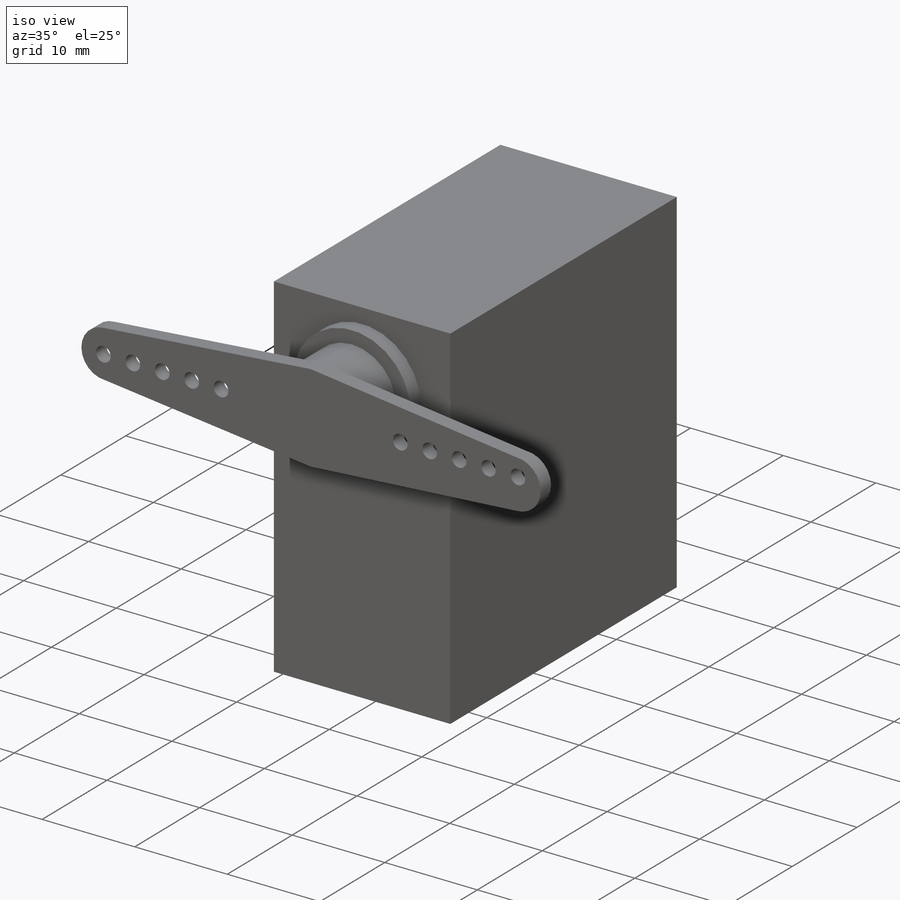
[diagram: iso view]
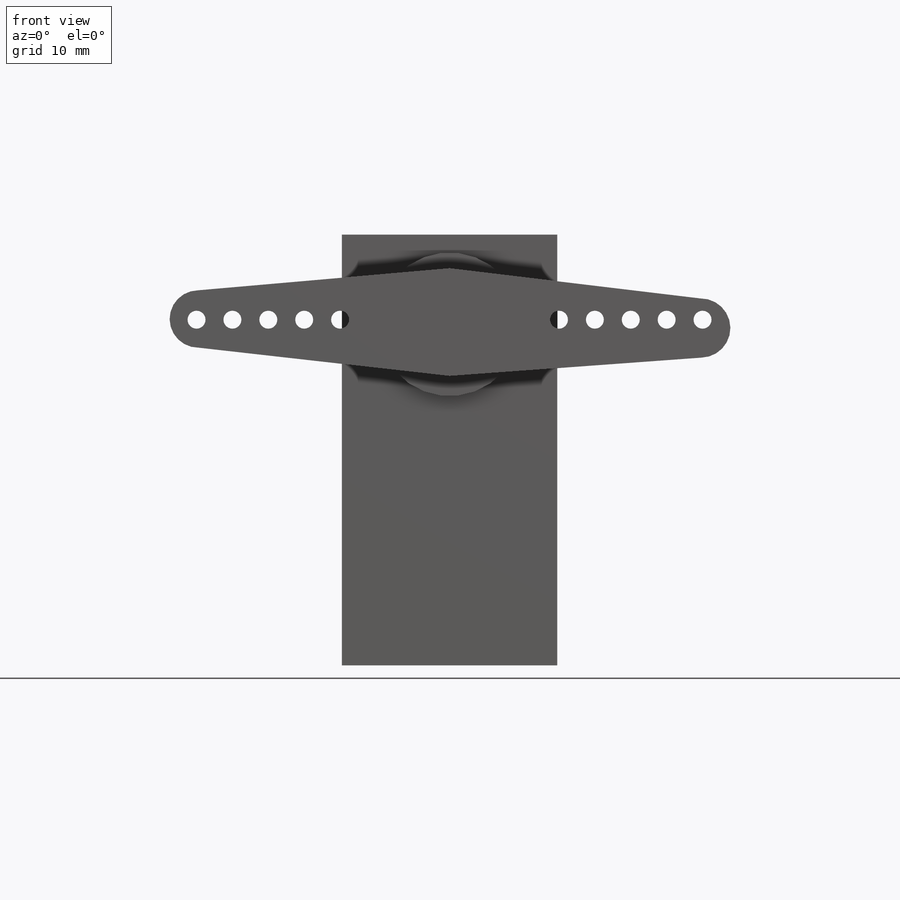
[diagram: front view]
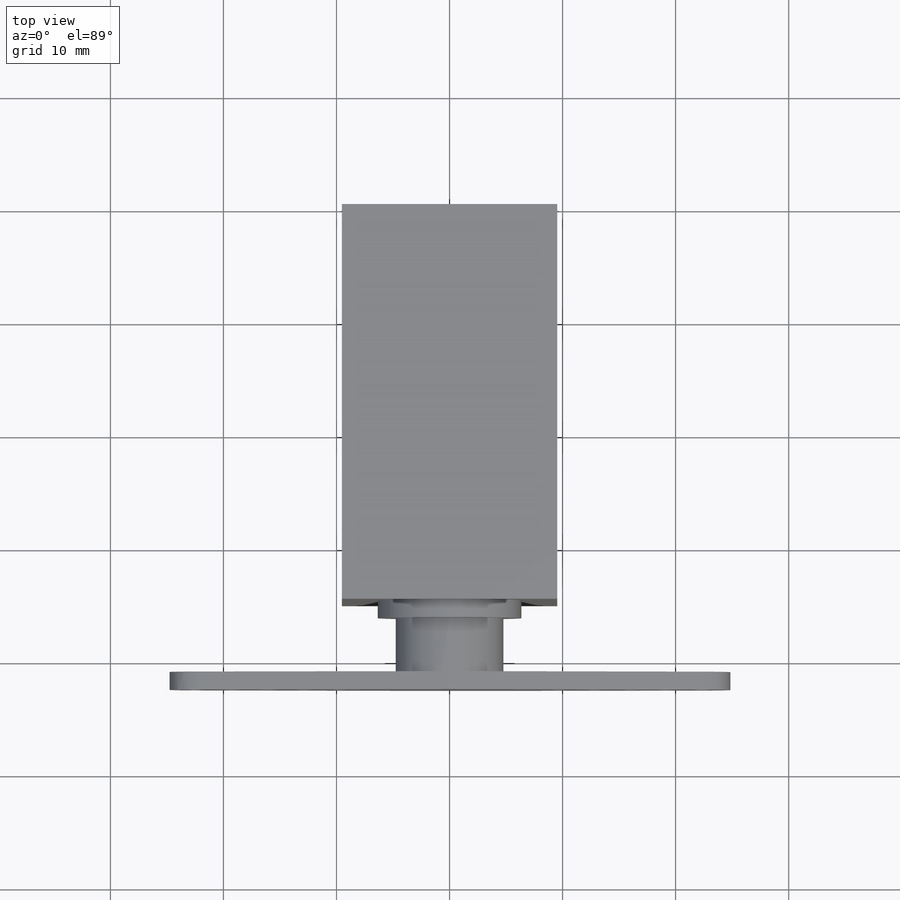
[diagram: top view]
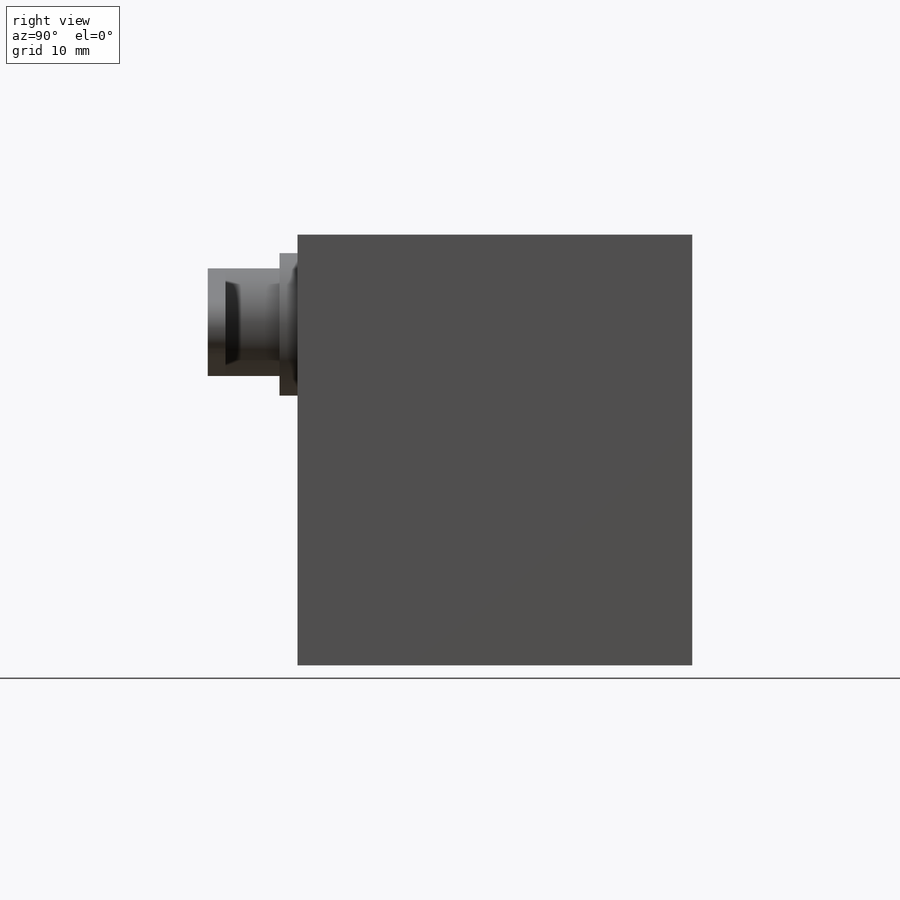
[diagram: right view]
SOLIDWORKS PART (.sldprt)
format: sldprt  version: not decoded by parser v0  size: 204,800 bytes
history: native  units: mm
features: sketch x5, extrude x4, material x1, cut_extrude x1, pattern_linear x1, mirror x1 (+11 scaffold rows collapsed)
feature tree (24):
  scaffold x11  (default folders/planes/origin — collapsed)
  material  "Material <not specified>"
  sketch  "Sketch1"  dims[D1=19.05mm D2=38.1mm]
  extrude  "Boss-Extrude1"  Depth=34.925mm
  sketch  "Sketch2"  dims[D1=12.7mm D2=7.9375mm]
  extrude  "Boss-Extrude2"  Depth=1.5875mm
  sketch  "Sketch3"  dims[D1=9.525mm D2=~0.195512mm]
  extrude  "Boss-Extrude3"  Depth=6.35mm
  sketch  "Sketch4"  dims[D1=22.225mm D2=22.225mm]
  extrude  "Boss-Extrude4"  Depth=1.5875mm
  sketch  "Sketch5"  dims[D1=1.5875mm D2=~2.38125mm]
  cut_extrude  "Cut-Extrude1"  Depth=6.35mm
  pattern_linear  "LPattern1"  Count1=5 Count2=1 Spacing1=3.175mm Spacing2=50mm
  mirror  "Mirror1"
decode coverage: 11 of 12 modeling features carry decoded parameters
note: ~ marks probable driven/reference dimensions
note: suppression state not decoded; provenance and decode notes live in map.json
